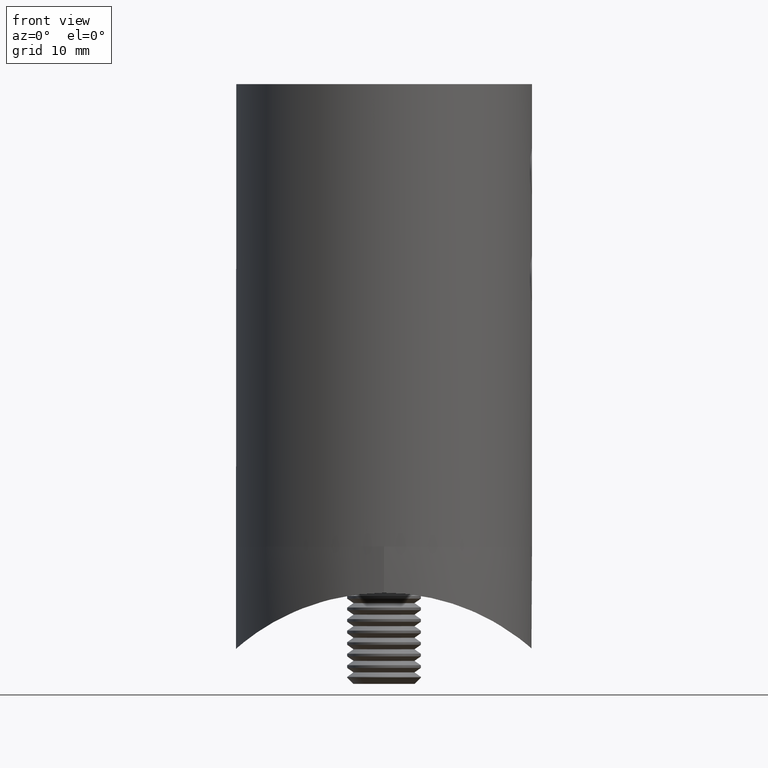
[diagram: clean part render]
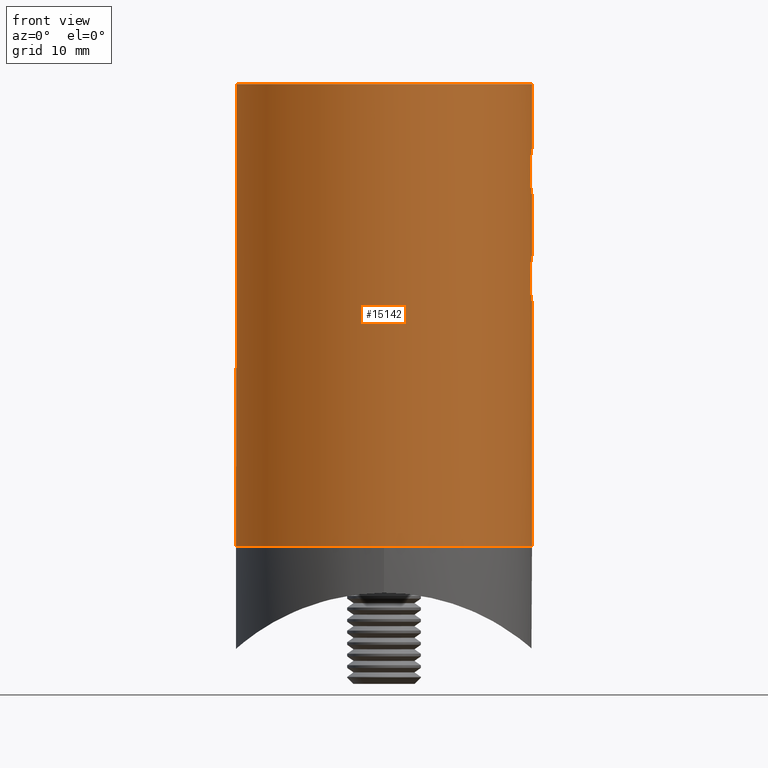
[diagram: same view with one face highlighted and labeled with its STEP entity id]
A machine part, front view. The second image highlights one B-rep face of the part: STEP entity #15142.
In plain terms, the highlighted cylindrical surface (bore or boss wall) has radius 16 mm, axis along (0, 0, 1).
Its self-contained STEP definition (entity closure, byte-faithful):
#245 = CARTESIAN_POINT ( 'NONE',  ( 15.82343172302561385, 2.371299003963624585, -21.80860171604527054 ) ) ;
#318 = CARTESIAN_POINT ( 'NONE',  ( 15.85264640334946229, 2.168402107178427851, -22.25484005574043422 ) ) ;
#457 = CARTESIAN_POINT ( 'NONE',  ( 15.99999999999999645, -1.084202172485504434E-16, -7.000000000000027534 ) ) ;
#520 = CARTESIAN_POINT ( 'NONE',  ( 15.96220866737805366, -1.109447262463671979, -7.253677395150227802 ) ) ;
#592 = CARTESIAN_POINT ( 'NONE',  ( 15.88941756032911279, 1.881455542367965084, -11.15429087891313920 ) ) ;
#678 = CARTESIAN_POINT ( 'NONE',  ( 15.85253555748232479, -2.169241836718339478, -19.74644636522888774 ) ) ;
#708 = CARTESIAN_POINT ( 'NONE',  ( 15.99999010098698804, -0.1642426287511559446, -11.99993664631212376 ) ) ;
#776 = CARTESIAN_POINT ( 'NONE',  ( 15.80345902061458929, 2.500136596893099750, -9.336853430154221201 ) ) ;
#846 = CARTESIAN_POINT ( 'NONE',  ( 15.99999999999999289, 0.1654332363785443738, -7.000000000000026645 ) ) ;
#856 = AXIS2_PLACEMENT_3D ( 'NONE', #16543, #10325, #2612 ) ;
#882 = CARTESIAN_POINT ( 'NONE',  ( 0.3301022249100266648, 15.99739960002328409, -44.48350564471681423 ) ) ;
#942 = CARTESIAN_POINT ( 'NONE',  ( 0.6509587533249504565, 15.98755810445062409, -44.41930164876154663 ) ) ;
#1074 = CARTESIAN_POINT ( 'NONE',  ( 0.1654332363785450122, 16.00000000000000355, -39.50000000000002842 ) ) ;
#1130 = EDGE_LOOP ( 'NONE', ( #8014 ) ) ;
#1257 = B_SPLINE_CURVE_WITH_KNOTS ( 'NONE', 3,
 ( #2671, #1074, #7252, #16411, #16287, #17737, #17802, #7180, #14895, #7125, #16479, #17676, #5696, #19272, #8773, #19448, #11857, #4212, #16354, #19328, #8521, #14961, #5641, #10258, #5762, #19206, #10062, #2413, #14773, #5577, #942, #882, #7059, #3960, #14707, #8580, #17993, #3007, #19778, #19652, #18060, #6037, #7322, #13602, #6112, #8904, #5968, #12051, #10661, #12186, #10597, #16738, #7585, #5904, #7391, #7448, #16678, #1396, #16607, #8832, #19515, #18120 ),
 .UNSPECIFIED., .T., .F.,
 ( 4, 2, 2, 2, 2, 2, 2, 2, 2, 2, 2, 2, 2, 2, 2, 2, 2, 2, 2, 2, 2, 2, 2, 2, 2, 2, 2, 2, 2, 2, 4 ),
 ( 0.000000000000000000, 0.0004891981462341162207, 0.0009783962924682324414, 0.001467594438702348554, 0.001956792584936464883, 0.002445990731170581429, 0.002935188877404697107, 0.003424387023638813653, 0.003913585169872929766, 0.004402783316107046312, 0.004891981462341162858, 0.005381179608575278536, 0.005870377754809394215, 0.006359575901043510761, 0.006848774047277627307, 0.007337972193511742985, 0.007827170339745859531, 0.008805566632214092623, 0.009294764778448203965, 0.009783962924682318776, 0.01027316107091643012, 0.01076235921715054319, 0.01125155736338465627, 0.01174075550961876761, 0.01222995365585288069, 0.01271915180208699377, 0.01320834994832110684, 0.01369754809455521992, 0.01467594438702342872, 0.01516514253325753660, 0.01565434067949163927 ),
 .UNSPECIFIED. ) ;
#1328 = CIRCLE ( 'NONE', #856, 16.00000000000000000 ) ;
#1377 = ORIENTED_EDGE ( 'NONE', *, *, #7118, .F. ) ;
#1386 = CARTESIAN_POINT ( 'NONE',  ( 15.98767710712706958, -0.6479051388432868208, -18.57991559567076578 ) ) ;
#1396 = CARTESIAN_POINT ( 'NONE',  ( -0.8098413242424431502, 15.98020123595263797, -39.62920709765658245 ) ) ;
#1422 = CIRCLE ( 'NONE', #12457, 16.00000000000000000 ) ;
#1519 = CARTESIAN_POINT ( 'NONE',  ( 15.81601659681034278, -2.419644226415069710, -20.35007019547621354 ) ) ;
#1639 = CARTESIAN_POINT ( 'NONE',  ( 15.81585894962995376, 2.420668142417814028, -20.35426504927201563 ) ) ;
#1707 = CARTESIAN_POINT ( 'NONE',  ( 15.88941756032911279, 1.881455542367964862, -22.65429087891314452 ) ) ;
#1772 = CARTESIAN_POINT ( 'NONE',  ( 15.88903459083776326, -1.884754519590195576, -22.65070363260169017 ) ) ;
#1965 = CARTESIAN_POINT ( 'NONE',  ( 16.00000000000000000, 0.000000000000000000, -50.00000000000000000 ) ) ;
#1974 = CARTESIAN_POINT ( 'NONE',  ( 15.84159404494869072, -2.246747056407897958, -8.391566941149580572 ) ) ;
#2039 = CARTESIAN_POINT ( 'NONE',  ( 15.80349541719041895, -2.499906519796543769, -9.335259249978825835 ) ) ;
#2051 = ORIENTED_EDGE ( 'NONE', *, *, #14652, .F. ) ;
#2104 = CARTESIAN_POINT ( 'NONE',  ( 15.95144872720779006, -1.252940556555169005, -7.330482931139792768 ) ) ;
#2244 = CARTESIAN_POINT ( 'NONE',  ( 15.80604236739318402, -2.483965348626151481, -9.172886747353938830 ) ) ;
#2310 = CARTESIAN_POINT ( 'NONE',  ( 15.85233394127914508, 2.170684478349000468, -8.249063867346546175 ) ) ;
#2371 = CARTESIAN_POINT ( 'NONE',  ( 15.92747579174407235, 1.539172029433665934, -7.503283891598835353 ) ) ;
#2413 = CARTESIAN_POINT ( 'NONE',  ( 1.255497401840284466, 15.95124297675815050, -44.16799641339771654 ) ) ;
#2612 = DIRECTION ( 'NONE',  ( 1.000000000000000000, 0.000000000000000000, 0.000000000000000000 ) ) ;
#2671 = CARTESIAN_POINT ( 'NONE',  ( -1.897353801849632760E-16, 16.00000000000000355, -39.50000000000003553 ) ) ;
#2928 = CARTESIAN_POINT ( 'NONE',  ( 15.80349541719041895, -2.499906519796544657, -20.83525924997883294 ) ) ;
#2993 = CARTESIAN_POINT ( 'NONE',  ( 16.00000000000000000, 2.710505431213761085E-17, -18.50000000000003197 ) ) ;
#3007 = CARTESIAN_POINT ( 'NONE',  ( -1.525047224483061736, 15.92774250322208296, -43.98774827025957990 ) ) ;
#3058 = CARTESIAN_POINT ( 'NONE',  ( 15.82322682364501887, -2.372658450600114932, -21.80459498615443792 ) ) ;
#3315 = CARTESIAN_POINT ( 'NONE',  ( 15.84151050614816825, 2.247342240368213062, -19.89264035338175773 ) ) ;
#3387 = CARTESIAN_POINT ( 'NONE',  ( 15.95309248088372378, 1.260768949626731805, -18.81677543970674193 ) ) ;
#3462 = EDGE_LOOP ( 'NONE', ( #7153, #17123, #12077, #4696 ) ) ;
#3521 = CARTESIAN_POINT ( 'NONE',  ( 16.00000000000000000, -0.1654332363785452065, -7.000000000000028422 ) ) ;
#3580 = CARTESIAN_POINT ( 'NONE',  ( 15.87640092462452124, 1.987022739836274976, -11.02588724854756741 ) ) ;
#3655 = CARTESIAN_POINT ( 'NONE',  ( 15.80346596981615015, -2.500092668231061577, -9.661891237243120045 ) ) ;
#3793 = CARTESIAN_POINT ( 'NONE',  ( 16.00001971032907377, 0.3255837222652484542, -12.00012614611530459 ) ) ;
#3850 = CARTESIAN_POINT ( 'NONE',  ( 15.80612643001855488, 2.483427711985340292, -9.830381127494243643 ) ) ;
#3893 = FACE_OUTER_BOUND ( 'NONE', #1130, .T. ) ;
#3960 = CARTESIAN_POINT ( 'NONE',  ( -0.3255837222652461782, 16.00001971032908088, -44.50012614611529926 ) ) ;
#3980 = CARTESIAN_POINT ( 'NONE',  ( 15.80350251168070486, 2.499861672707218929, -9.667306376764694065 ) ) ;
#3996 = EDGE_CURVE ( 'NONE', #17806, #17806, #12046, .T. ) ;
#4212 = CARTESIAN_POINT ( 'NONE',  ( 2.500092668231061577, 15.80346596981614304, -42.16189123724311116 ) ) ;
#4406 = CARTESIAN_POINT ( 'NONE',  ( 15.99999999999999645, -0.1654332363785449567, -18.50000000000003197 ) ) ;
#4606 = CARTESIAN_POINT ( 'NONE',  ( 15.80346596981615015, -2.500092668231060244, -21.16189123724311827 ) ) ;
#4659 = CARTESIAN_POINT ( 'NONE',  ( 16.00000000000000000, -7.703719777548943412E-31, -18.50000000000003197 ) ) ;
#4696 = ORIENTED_EDGE ( 'NONE', *, *, #13542, .F. ) ;
#4805 = CARTESIAN_POINT ( 'NONE',  ( 16.00001971032908088, 0.3255837222652474550, -23.50012614611530637 ) ) ;
#4873 = CARTESIAN_POINT ( 'NONE',  ( 15.96222279634701025, -1.109231536206028101, -23.24642170904225580 ) ) ;
#4940 = CARTESIAN_POINT ( 'NONE',  ( 15.99739960002328054, -0.3301022249100284411, -23.48350564471681778 ) ) ;
#5037 = CARTESIAN_POINT ( 'NONE',  ( 8.150000000000000355, 13.76871453694934111, -33.00000000000000000 ) ) ;
#5138 = CARTESIAN_POINT ( 'NONE',  ( 15.80606710648460300, -2.483805029018752109, -9.827817169408570308 ) ) ;
#5266 = CARTESIAN_POINT ( 'NONE',  ( 15.95124297675813985, -1.255497401840281357, -11.66799641339772542 ) ) ;
#5328 = CARTESIAN_POINT ( 'NONE',  ( 8.149999999999995026, 13.76871453694933933, -50.00000000000000000 ) ) ;
#5335 = CARTESIAN_POINT ( 'NONE',  ( 15.81601659681034278, -2.419644226415069266, -8.850070195476209989 ) ) ;
#5403 = CARTESIAN_POINT ( 'NONE',  ( 15.84151050614817891, 2.247342240368211730, -8.392640353381754181 ) ) ;
#5577 = CARTESIAN_POINT ( 'NONE',  ( 0.8067820723244113479, 15.98036463566804954, -44.37189961498080493 ) ) ;
#5641 = CARTESIAN_POINT ( 'NONE',  ( 2.169091757621980143, 15.85255037896790853, -43.25360227542727642 ) ) ;
#5696 = CARTESIAN_POINT ( 'NONE',  ( 2.246747056407895293, 15.84159404494869783, -40.89156694114956991 ) ) ;
#5762 = CARTESIAN_POINT ( 'NONE',  ( 1.884754519590196020, 15.88903459083775616, -43.65070363260165465 ) ) ;
#5806 = DIRECTION ( 'NONE',  ( 0.000000000000000000, 0.000000000000000000, 1.000000000000000000 ) ) ;
#5891 = CARTESIAN_POINT ( 'NONE',  ( 15.87647291073326272, -1.986479716021239961, -19.47326976867123705 ) ) ;
#5904 = CARTESIAN_POINT ( 'NONE',  ( -1.989343226491896655, 15.87611022944810557, -40.47709953058839005 ) ) ;
#5968 = CARTESIAN_POINT ( 'NONE',  ( -2.499861672707217597, 15.80350251168070486, -42.16730637676466387 ) ) ;
#6037 = CARTESIAN_POINT ( 'NONE',  ( -2.168402107178430516, 15.85264640334946229, -43.25484005574040935 ) ) ;
#6112 = CARTESIAN_POINT ( 'NONE',  ( -2.419509985083067249, 15.81603671450187676, -42.65002793951062898 ) ) ;
#6161 = CARTESIAN_POINT ( 'NONE',  ( 15.92764525334669479, -1.525956392937322326, -22.98694218873797013 ) ) ;
#6354 = CARTESIAN_POINT ( 'NONE',  ( 15.87611022944811268, 1.989343226491899541, -19.47709953058840782 ) ) ;
#6421 = CARTESIAN_POINT ( 'NONE',  ( 15.91503527193069090, 1.650793038997937945, -22.88452530159675646 ) ) ;
#6685 = CARTESIAN_POINT ( 'NONE',  ( 15.98767710712706958, -0.6479051388432872649, -7.079915595670764894 ) ) ;
#6753 = CARTESIAN_POINT ( 'NONE',  ( 15.98036463566804954, -0.8067820723244106818, -11.87189961498082624 ) ) ;
#6945 = CARTESIAN_POINT ( 'NONE',  ( 15.98020123595263797, 0.8098413242424457037, -7.129207097656609982 ) ) ;
#7059 = CARTESIAN_POINT ( 'NONE',  ( 0.1642426287511583038, 15.99999010098699159, -44.49993664631212908 ) ) ;
#7082 = DIRECTION ( 'NONE',  ( 0.000000000000000000, 0.000000000000000000, 1.000000000000000000 ) ) ;
#7118 = EDGE_CURVE ( 'NONE', #8941, #8941, #7444, .T. ) ;
#7125 = CARTESIAN_POINT ( 'NONE',  ( 1.883088210293348164, 15.88922248633940093, -40.34758278094891892 ) ) ;
#7153 = ORIENTED_EDGE ( 'NONE', *, *, #17046, .F. ) ;
#7180 = CARTESIAN_POINT ( 'NONE',  ( 1.524503371790983275, 15.92778911225276417, -40.01189692929805375 ) ) ;
#7252 = CARTESIAN_POINT ( 'NONE',  ( 0.3280518095241423127, 15.99743674345870126, -39.51625854741580213 ) ) ;
#7322 = CARTESIAN_POINT ( 'NONE',  ( -2.245344190651986427, 15.84179535043164400, -43.11145182841886481 ) ) ;
#7380 = CARTESIAN_POINT ( 'NONE',  ( 15.96220866737805011, -1.109447262463671979, -18.75367739515022336 ) ) ;
#7391 = CARTESIAN_POINT ( 'NONE',  ( -1.884110435080143198, 15.88910040803500756, -40.34875522503264023 ) ) ;
#7444 = B_SPLINE_CURVE_WITH_KNOTS ( 'NONE', 3,
 ( #2993, #4406, #8963, #1386, #15085, #7380, #18314, #18048, #13733, #15283, #5891, #678, #19568, #12113, #1519, #19638, #2928, #4606, #12242, #13657, #3058, #15220, #13802, #7574, #1772, #15602, #6161, #9233, #4873, #16861, #12435, #4940, #16920, #4805, #10897, #9486, #11027, #9425, #6421, #1707, #7760, #318, #15541, #245, #15481, #7692, #10965, #12374, #12507, #1639, #14066, #3315, #12574, #6354, #13931, #9351, #3387, #18511, #10769, #17049, #14130, #18438 ),
 .UNSPECIFIED., .T., .F.,
 ( 4, 2, 2, 2, 2, 2, 2, 2, 2, 2, 2, 2, 2, 2, 2, 2, 2, 2, 2, 2, 2, 2, 2, 2, 2, 2, 2, 2, 2, 2, 4 ),
 ( 0.000000000000000000, 0.0004891981462341139439, 0.0009783962924682276709, 0.001467594438702341832, 0.001956792584936455776, 0.002445990731170569719, 0.002935188877404683663, 0.003424387023638797607, 0.003913585169872911551, 0.004402783316107025495, 0.004891981462341139439, 0.005381179608575253383, 0.005870377754809367327, 0.006359575901043481271, 0.006848774047277595214, 0.007337972193511709158, 0.007827170339745823102, 0.008805566632214050990, 0.009294764778448164066, 0.009783962924682278878, 0.01027316107091639369, 0.01076235921715050677, 0.01125155736338461984, 0.01174075550961873465, 0.01222995365585284946, 0.01271915180208696254, 0.01320834994832107562, 0.01369754809455519043, 0.01467594438702341832, 0.01516514253325753139, 0.01565434067949164620 ),
 .UNSPECIFIED. ) ;
#7448 = CARTESIAN_POINT ( 'NONE',  ( -1.539172029433665267, 15.92747579174406347, -40.00328389159881937 ) ) ;
#7574 = CARTESIAN_POINT ( 'NONE',  ( 15.87624052084764337, -1.988290596189300485, -22.52419756693328523 ) ) ;
#7585 = CARTESIAN_POINT ( 'NONE',  ( -2.170684478349001800, 15.85233394127915219, -40.74906386734653552 ) ) ;
#7692 = CARTESIAN_POINT ( 'NONE',  ( 15.80612643001855133, 2.483427711985339403, -21.33038112749423831 ) ) ;
#7760 = CARTESIAN_POINT ( 'NONE',  ( 15.87640092462451058, 1.987022739836274532, -22.52588724854755853 ) ) ;
#7970 = EDGE_LOOP ( 'NONE', ( #8577 ) ) ;
#8014 = ORIENTED_EDGE ( 'NONE', *, *, #19716, .T. ) ;
#8023 = EDGE_CURVE ( 'NONE', #16434, #10866, #1328, .T. ) ;
#8154 = CARTESIAN_POINT ( 'NONE',  ( 15.98036376761718280, -0.8068163506865959622, -7.128105008751027150 ) ) ;
#8211 = CYLINDRICAL_SURFACE ( 'NONE', #12061, 16.00000000000000000 ) ;
#8353 = CARTESIAN_POINT ( 'NONE',  ( 15.91492567410532644, -1.651926334815733144, -11.38368295266011465 ) ) ;
#8521 = CARTESIAN_POINT ( 'NONE',  ( 2.372658450600116709, 15.82322682364501532, -42.80459498615441305 ) ) ;
#8577 = ORIENTED_EDGE ( 'NONE', *, *, #3996, .F. ) ;
#8580 = CARTESIAN_POINT ( 'NONE',  ( -1.106495572119109871, 15.96240569125736997, -44.24770843532476050 ) ) ;
#8773 = CARTESIAN_POINT ( 'NONE',  ( 2.419644226415068378, 15.81601659681034278, -41.35007019547618512 ) ) ;
#8832 = CARTESIAN_POINT ( 'NONE',  ( -0.3288858443642667662, 15.99743546037499975, -39.51626077848827379 ) ) ;
#8879 = CIRCLE ( 'NONE', #19467, 16.00000000000000000 ) ;
#8904 = CARTESIAN_POINT ( 'NONE',  ( -2.483427711985339847, 15.80612643001855488, -42.33038112749422766 ) ) ;
#8907 = CARTESIAN_POINT ( 'NONE',  ( -8.150000000000000355, 13.76871453694933578, 0.000000000000000000 ) ) ;
#8941 = VERTEX_POINT ( 'NONE', #4659 ) ;
#8963 = CARTESIAN_POINT ( 'NONE',  ( 15.99743674345869060, -0.3280518095241419241, -18.51625854741579857 ) ) ;
#9185 = VECTOR ( 'NONE', #17937, 1000.000000000000000 ) ;
#9233 = CARTESIAN_POINT ( 'NONE',  ( 15.95124297675815050, -1.255497401840282023, -23.16799641339772720 ) ) ;
#9351 = CARTESIAN_POINT ( 'NONE',  ( 15.92747579174406347, 1.539172029433665712, -19.00328389159884068 ) ) ;
#9425 = CARTESIAN_POINT ( 'NONE',  ( 15.92774250322207763, 1.525047224483062180, -22.98774827025959411 ) ) ;
#9486 = CARTESIAN_POINT ( 'NONE',  ( 15.96240569125736641, 1.106495572119109649, -23.24770843532474984 ) ) ;
#9539 = EDGE_LOOP ( 'NONE', ( #1377 ) ) ;
#9621 = CARTESIAN_POINT ( 'NONE',  ( 15.85255037896792274, -2.169091757621979699, -10.75360227542731373 ) ) ;
#9699 = CARTESIAN_POINT ( 'NONE',  ( 15.92774250322207941, 1.525047224483063957, -11.48774827025959056 ) ) ;
#9764 = CARTESIAN_POINT ( 'NONE',  ( 15.85264640334946229, 2.168402107178429628, -10.75484005574042889 ) ) ;
#9959 = DIRECTION ( 'NONE',  ( -0.000000000000000000, -0.000000000000000000, 1.000000000000000000 ) ) ;
#9968 = CARTESIAN_POINT ( 'NONE',  ( 15.95309248088371312, 1.260768949626728919, -7.316775439706737494 ) ) ;
#10024 = CARTESIAN_POINT ( 'NONE',  ( 15.87611022944810912, 1.989343226491896210, -7.977099530588411369 ) ) ;
#10062 = CARTESIAN_POINT ( 'NONE',  ( 1.525956392937325656, 15.92764525334669479, -43.98694218873795592 ) ) ;
#10230 = DIRECTION ( 'NONE',  ( 1.000000000000000000, 0.000000000000000000, 0.000000000000000000 ) ) ;
#10258 = CARTESIAN_POINT ( 'NONE',  ( 1.988290596189302928, 15.87624052084763626, -43.52419756693325326 ) ) ;
#10325 = DIRECTION ( 'NONE',  ( 0.000000000000000000, 0.000000000000000000, 1.000000000000000000 ) ) ;
#10597 = CARTESIAN_POINT ( 'NONE',  ( -2.372543552883939810, 15.82324364191536858, -41.19512136196161123 ) ) ;
#10661 = CARTESIAN_POINT ( 'NONE',  ( -2.484052892959634384, 15.80602764122869885, -41.67428677139690052 ) ) ;
#10769 = CARTESIAN_POINT ( 'NONE',  ( 15.98753103381766749, 0.6518885259027890067, -18.58087458595154473 ) ) ;
#10866 = VERTEX_POINT ( 'NONE', #17070 ) ;
#10897 = CARTESIAN_POINT ( 'NONE',  ( 15.98942922284852308, 0.6550303360437331746, -23.43455086294360967 ) ) ;
#10965 = CARTESIAN_POINT ( 'NONE',  ( 15.80350251168070486, 2.499861672707218041, -21.16730637676469584 ) ) ;
#11027 = CARTESIAN_POINT ( 'NONE',  ( 15.95151097178184507, 1.252217234737675433, -23.16999175571001146 ) ) ;
#11160 = CARTESIAN_POINT ( 'NONE',  ( 15.96240569125737352, 1.106495572119110093, -11.74770843532475695 ) ) ;
#11227 = CARTESIAN_POINT ( 'NONE',  ( 15.99743674345869771, -0.3280518095241419241, -7.016258547415803903 ) ) ;
#11366 = CARTESIAN_POINT ( 'NONE',  ( -8.150000000000000355, 13.76871453694933578, -50.00000000000000000 ) ) ;
#11380 = VERTEX_POINT ( 'NONE', #1965 ) ;
#11432 = CARTESIAN_POINT ( 'NONE',  ( 15.87647291073325562, -1.986479716021239961, -7.973269768671229052 ) ) ;
#11496 = CARTESIAN_POINT ( 'NONE',  ( 15.99743546037500685, 0.3288858443642636020, -7.016260778488280003 ) ) ;
#11857 = CARTESIAN_POINT ( 'NONE',  ( 2.499906519796543325, 15.80349541719041895, -41.83525924997879031 ) ) ;
#11891 = DIRECTION ( 'NONE',  ( 0.000000000000000000, 0.000000000000000000, 1.000000000000000000 ) ) ;
#12046 = B_SPLINE_CURVE_WITH_KNOTS ( 'NONE', 3,
 ( #457, #3521, #11227, #6685, #8154, #520, #2104, #12917, #12853, #14270, #11432, #15800, #1974, #14465, #5335, #2244, #2039, #3655, #5138, #17444, #18772, #14393, #9621, #19041, #15935, #8353, #17311, #5266, #15868, #6753, #12975, #18840, #708, #3793, #14535, #11160, #12701, #9699, #12778, #592, #3580, #9764, #16191, #13173, #19158, #3850, #3980, #776, #13049, #14732, #14603, #5403, #2310, #10024, #19291, #2371, #9968, #6945, #13111, #11496, #846, #17761 ),
 .UNSPECIFIED., .T., .F.,
 ( 4, 2, 2, 2, 2, 2, 2, 2, 2, 2, 2, 2, 2, 2, 2, 2, 2, 2, 2, 2, 2, 2, 2, 2, 2, 2, 2, 2, 2, 2, 4 ),
 ( 0.000000000000000000, 0.0004891981462341147028, 0.0009783962924682294057, 0.001467594438702344217, 0.001956792584936458811, 0.002445990731170573623, 0.002935188877404688434, 0.003424387023638802811, 0.003913585169872917623, 0.004402783316107032434, 0.004891981462341147245, 0.005381179608575261189, 0.005870377754809376868, 0.006359575901043491679, 0.006848774047277605623, 0.007337972193511720434, 0.007827170339745835245, 0.008805566632214064868, 0.009294764778448177944, 0.009783962924682289286, 0.01027316107091640410, 0.01076235921715051544, 0.01125155736338463025, 0.01174075550961874333, 0.01222995365585285467, 0.01271915180208696948, 0.01320834994832108082, 0.01369754809455519390, 0.01467594438702342179, 0.01516514253325753660, 0.01565434067949164967 ),
 .UNSPECIFIED. ) ;
#12051 = CARTESIAN_POINT ( 'NONE',  ( -2.500136596893099306, 15.80345902061458574, -41.83685343015421410 ) ) ;
#12061 = AXIS2_PLACEMENT_3D ( 'NONE', #13511, #11891, #10230 ) ;
#12077 = ORIENTED_EDGE ( 'NONE', *, *, #8023, .F. ) ;
#12113 = CARTESIAN_POINT ( 'NONE',  ( 15.82339770301563853, -2.371509930957719003, -20.19226438186806760 ) ) ;
#12186 = CARTESIAN_POINT ( 'NONE',  ( -2.420668142417813584, 15.81585894962995731, -41.35426504927199431 ) ) ;
#12242 = CARTESIAN_POINT ( 'NONE',  ( 15.80606710648461366, -2.483805029018753441, -21.32781716940857919 ) ) ;
#12374 = CARTESIAN_POINT ( 'NONE',  ( 15.80345902061458574, 2.500136596893099306, -20.83685343015422120 ) ) ;
#12435 = CARTESIAN_POINT ( 'NONE',  ( 15.98755810445063119, -0.6509587533249517888, -23.41930164876156439 ) ) ;
#12457 = AXIS2_PLACEMENT_3D ( 'NONE', #18033, #5806, #16647 ) ;
#12507 = CARTESIAN_POINT ( 'NONE',  ( 15.80602764122868820, 2.484052892959634384, -20.67428677139689697 ) ) ;
#12574 = CARTESIAN_POINT ( 'NONE',  ( 15.85233394127914508, 2.170684478349002244, -19.74906386734655328 ) ) ;
#12701 = CARTESIAN_POINT ( 'NONE',  ( 15.95151097178185573, 1.252217234737675877, -11.66999175571001146 ) ) ;
#12778 = CARTESIAN_POINT ( 'NONE',  ( 15.91503527193070155, 1.650793038997938167, -11.38452530159675113 ) ) ;
#12785 = LINE ( 'NONE', #5328, #9185 ) ;
#12853 = CARTESIAN_POINT ( 'NONE',  ( 15.91481673507199801, -1.652882547917920775, -7.617320219381272572 ) ) ;
#12917 = CARTESIAN_POINT ( 'NONE',  ( 15.92778911225276062, -1.524503371790980832, -7.511896929298057302 ) ) ;
#12975 = CARTESIAN_POINT ( 'NONE',  ( 15.98755810445063474, -0.6509587533249493463, -11.91930164876157150 ) ) ;
#13049 = CARTESIAN_POINT ( 'NONE',  ( 15.80602764122869175, 2.484052892959633496, -9.174286771396884532 ) ) ;
#13104 = CARTESIAN_POINT ( 'NONE',  ( -8.150000000000000355, 13.76871453694933578, -33.00000000000000000 ) ) ;
#13111 = CARTESIAN_POINT ( 'NONE',  ( 15.98753103381767104, 0.6518885259027891177, -7.080874585951538513 ) ) ;
#13173 = CARTESIAN_POINT ( 'NONE',  ( 15.82343172302561030, 2.371299003963625474, -10.30860171604527231 ) ) ;
#13511 = CARTESIAN_POINT ( 'NONE',  ( 0.000000000000000000, 0.000000000000000000, -50.00000000000000000 ) ) ;
#13542 = EDGE_CURVE ( 'NONE', #15677, #16434, #17416, .T. ) ;
#13602 = CARTESIAN_POINT ( 'NONE',  ( -2.371299003963626806, 15.82343172302561030, -42.80860171604525988 ) ) ;
#13657 = CARTESIAN_POINT ( 'NONE',  ( 15.81597365182931014, -2.419921949467493061, -21.64863647540309799 ) ) ;
#13733 = CARTESIAN_POINT ( 'NONE',  ( 15.91481673507199801, -1.652882547917922329, -19.11732021938126991 ) ) ;
#13802 = CARTESIAN_POINT ( 'NONE',  ( 15.85255037896792629, -2.169091757621978811, -22.25360227542731550 ) ) ;
#13931 = CARTESIAN_POINT ( 'NONE',  ( 15.88910040803501111, 1.884110435080141199, -19.34875522503266509 ) ) ;
#13942 = VERTEX_POINT ( 'NONE', #18624 ) ;
#14066 = CARTESIAN_POINT ( 'NONE',  ( 15.82324364191535437, 2.372543552883942919, -20.19512136196161123 ) ) ;
#14130 = CARTESIAN_POINT ( 'NONE',  ( 16.00000000000000355, 0.1654332363785450122, -18.50000000000003197 ) ) ;
#14190 = EDGE_CURVE ( 'NONE', #10866, #18975, #12785, .T. ) ;
#14270 = CARTESIAN_POINT ( 'NONE',  ( 15.88922248633939738, -1.883088210293350606, -7.847582780948944681 ) ) ;
#14393 = CARTESIAN_POINT ( 'NONE',  ( 15.84152337852460057, -2.247254387776698614, -10.60757795733184849 ) ) ;
#14465 = CARTESIAN_POINT ( 'NONE',  ( 15.82339770301562787, -2.371509930957720336, -8.692264381868065826 ) ) ;
#14535 = CARTESIAN_POINT ( 'NONE',  ( 15.98942922284851420, 0.6550303360437321754, -11.93455086294359191 ) ) ;
#14603 = CARTESIAN_POINT ( 'NONE',  ( 15.82324364191536858, 2.372543552883942919, -8.695121361961605899 ) ) ;
#14652 = EDGE_CURVE ( 'NONE', #13942, #13942, #1257, .T. ) ;
#14704 = FACE_OUTER_BOUND ( 'NONE', #3462, .T. ) ;
#14707 = CARTESIAN_POINT ( 'NONE',  ( -0.6550303360437297329, 15.98942922284853019, -44.43455086294360257 ) ) ;
#14732 = CARTESIAN_POINT ( 'NONE',  ( 15.81585894962995731, 2.420668142417810920, -8.854265049272008525 ) ) ;
#14773 = CARTESIAN_POINT ( 'NONE',  ( 1.109231536206027657, 15.96222279634701735, -44.24642170904224514 ) ) ;
#14895 = CARTESIAN_POINT ( 'NONE',  ( 1.652882547917917888, 15.91481673507200156, -40.11732021938126280 ) ) ;
#14961 = CARTESIAN_POINT ( 'NONE',  ( 2.247254387776699946, 15.84152337852460413, -43.10757795733184139 ) ) ;
#15085 = CARTESIAN_POINT ( 'NONE',  ( 15.98036376761717570, -0.8068163506865962953, -18.62810500875103159 ) ) ;
#15142 = ADVANCED_FACE ( 'NONE', ( #18240, #18725, #16351, #14704, #3893 ), #8211, .T. ) ;
#15220 = CARTESIAN_POINT ( 'NONE',  ( 15.84152337852460413, -2.247254387776697282, -22.10757795733184139 ) ) ;
#15283 = CARTESIAN_POINT ( 'NONE',  ( 15.88922248633940093, -1.883088210293351716, -19.34758278094894379 ) ) ;
#15393 = CARTESIAN_POINT ( 'NONE',  ( 16.00000000000000000, 0.000000000000000000, -7.000000000000027534 ) ) ;
#15481 = CARTESIAN_POINT ( 'NONE',  ( 15.81603671450185900, 2.419509985083066361, -21.65002793951064319 ) ) ;
#15523 = VECTOR ( 'NONE', #7082, 1000.000000000000000 ) ;
#15541 = CARTESIAN_POINT ( 'NONE',  ( 15.84179535043163334, 2.245344190651985095, -22.11145182841885770 ) ) ;
#15602 = CARTESIAN_POINT ( 'NONE',  ( 15.91492567410532644, -1.651926334815734254, -22.88368295266010932 ) ) ;
#15677 = VERTEX_POINT ( 'NONE', #13104 ) ;
#15800 = CARTESIAN_POINT ( 'NONE',  ( 15.85253555748232834, -2.169241836718340366, -8.246446365228889519 ) ) ;
#15868 = CARTESIAN_POINT ( 'NONE',  ( 15.96222279634702090, -1.109231536206025659, -11.74642170904225225 ) ) ;
#15935 = CARTESIAN_POINT ( 'NONE',  ( 15.88903459083776681, -1.884754519590194688, -11.15070363260168840 ) ) ;
#16047 = CARTESIAN_POINT ( 'NONE',  ( 0.000000000000000000, 0.000000000000000000, -33.00000000000000000 ) ) ;
#16191 = CARTESIAN_POINT ( 'NONE',  ( 15.84179535043163689, 2.245344190651985539, -10.61145182841886125 ) ) ;
#16287 = CARTESIAN_POINT ( 'NONE',  ( 0.8068163506865948520, 15.98036376761717925, -39.62810500875100672 ) ) ;
#16351 = FACE_BOUND ( 'NONE', #19450, .T. ) ;
#16354 = CARTESIAN_POINT ( 'NONE',  ( 2.483805029018752553, 15.80606710648460655, -42.32781716940855432 ) ) ;
#16411 = CARTESIAN_POINT ( 'NONE',  ( 0.6479051388432869318, 15.98767710712706958, -39.57991559567076223 ) ) ;
#16434 = VERTEX_POINT ( 'NONE', #8907 ) ;
#16479 = CARTESIAN_POINT ( 'NONE',  ( 1.986479716021238184, 15.87647291073326627, -40.47326976867120862 ) ) ;
#16543 = CARTESIAN_POINT ( 'NONE',  ( 0.000000000000000000, 0.000000000000000000, 0.000000000000000000 ) ) ;
#16607 = CARTESIAN_POINT ( 'NONE',  ( -0.6518885259027915602, 15.98753103381767104, -39.58087458595152697 ) ) ;
#16647 = DIRECTION ( 'NONE',  ( 1.000000000000000000, 0.000000000000000000, 0.000000000000000000 ) ) ;
#16678 = CARTESIAN_POINT ( 'NONE',  ( -1.260768949626728253, 15.95309248088373089, -39.81677543970672417 ) ) ;
#16738 = CARTESIAN_POINT ( 'NONE',  ( -2.247342240368209065, 15.84151050614817891, -40.89264035338172931 ) ) ;
#16861 = CARTESIAN_POINT ( 'NONE',  ( 15.98036463566805310, -0.8067820723244129022, -23.37189961498083690 ) ) ;
#16920 = CARTESIAN_POINT ( 'NONE',  ( 15.99999010098699159, -0.1642426287511566108, -23.49993664631212198 ) ) ;
#17046 = EDGE_CURVE ( 'NONE', #18975, #15677, #8879, .T. ) ;
#17049 = CARTESIAN_POINT ( 'NONE',  ( 15.99743546037500330, 0.3288858443642658225, -18.51626077848827734 ) ) ;
#17070 = CARTESIAN_POINT ( 'NONE',  ( 8.150000000000011013, 13.76871453694933045, 0.000000000000000000 ) ) ;
#17123 = ORIENTED_EDGE ( 'NONE', *, *, #14190, .F. ) ;
#17311 = CARTESIAN_POINT ( 'NONE',  ( 15.92764525334669479, -1.525956392937322104, -11.48694218873796302 ) ) ;
#17416 = LINE ( 'NONE', #11366, #15523 ) ;
#17444 = CARTESIAN_POINT ( 'NONE',  ( 15.81597365182931014, -2.419921949467491284, -10.14863647540310154 ) ) ;
#17565 = DIRECTION ( 'NONE',  ( -1.000000000000000000, 3.552713678800500929E-15, 0.000000000000000000 ) ) ;
#17676 = CARTESIAN_POINT ( 'NONE',  ( 2.169241836718340366, 15.85253555748232479, -40.74644636522886287 ) ) ;
#17737 = CARTESIAN_POINT ( 'NONE',  ( 1.109447262463670647, 15.96220866737805011, -39.75367739515019139 ) ) ;
#17761 = CARTESIAN_POINT ( 'NONE',  ( 15.99999999999999645, -1.084202172485504434E-16, -7.000000000000027534 ) ) ;
#17802 = CARTESIAN_POINT ( 'NONE',  ( 1.252940556555171447, 15.95144872720778650, -39.83048293113979099 ) ) ;
#17806 = VERTEX_POINT ( 'NONE', #15393 ) ;
#17937 = DIRECTION ( 'NONE',  ( -0.000000000000000000, -0.000000000000000000, -1.000000000000000000 ) ) ;
#17993 = CARTESIAN_POINT ( 'NONE',  ( -1.252217234737675655, 15.95151097178185573, -44.16999175571002212 ) ) ;
#18033 = CARTESIAN_POINT ( 'NONE',  ( 0.000000000000000000, 0.000000000000000000, -50.00000000000000000 ) ) ;
#18048 = CARTESIAN_POINT ( 'NONE',  ( 15.92778911225276772, -1.524503371790981276, -19.01189692929806085 ) ) ;
#18060 = CARTESIAN_POINT ( 'NONE',  ( -1.987022739836278751, 15.87640092462451058, -43.52588724854752655 ) ) ;
#18120 = CARTESIAN_POINT ( 'NONE',  ( -1.897353801849632760E-16, 16.00000000000000355, -39.50000000000003553 ) ) ;
#18240 = FACE_BOUND ( 'NONE', #7970, .T. ) ;
#18314 = CARTESIAN_POINT ( 'NONE',  ( 15.95144872720779006, -1.252940556555169449, -18.83048293113979810 ) ) ;
#18438 = CARTESIAN_POINT ( 'NONE',  ( 16.00000000000000000, 2.710505431213761085E-17, -18.50000000000003197 ) ) ;
#18511 = CARTESIAN_POINT ( 'NONE',  ( 15.98020123595264153, 0.8098413242424462588, -18.62920709765661442 ) ) ;
#18624 = CARTESIAN_POINT ( 'NONE',  ( 0.000000000000000000, 16.00000000000000000, -39.50000000000001421 ) ) ;
#18725 = FACE_BOUND ( 'NONE', #9539, .T. ) ;
#18772 = CARTESIAN_POINT ( 'NONE',  ( 15.82322682364502242, -2.372658450600116709, -10.30459498615443259 ) ) ;
#18840 = CARTESIAN_POINT ( 'NONE',  ( 15.99739960002326988, -0.3301022249100263317, -11.98350564471681601 ) ) ;
#18975 = VERTEX_POINT ( 'NONE', #5037 ) ;
#19041 = CARTESIAN_POINT ( 'NONE',  ( 15.87624052084763626, -1.988290596189301596, -11.02419756693327635 ) ) ;
#19158 = CARTESIAN_POINT ( 'NONE',  ( 15.81603671450187321, 2.419509985083066805, -10.15002793951064852 ) ) ;
#19206 = CARTESIAN_POINT ( 'NONE',  ( 1.651926334815734920, 15.91492567410532999, -43.88368295266008801 ) ) ;
#19272 = CARTESIAN_POINT ( 'NONE',  ( 2.371509930957718559, 15.82339770301563497, -41.19226438186804984 ) ) ;
#19291 = CARTESIAN_POINT ( 'NONE',  ( 15.88910040803500756, 1.884110435080142754, -7.848755225032656213 ) ) ;
#19328 = CARTESIAN_POINT ( 'NONE',  ( 2.419921949467492617, 15.81597365182931370, -42.64863647540310865 ) ) ;
#19448 = CARTESIAN_POINT ( 'NONE',  ( 2.483965348626150149, 15.80604236739319113, -41.67288674735393528 ) ) ;
#19450 = EDGE_LOOP ( 'NONE', ( #2051 ) ) ;
#19467 = AXIS2_PLACEMENT_3D ( 'NONE', #16047, #9959, #17565 ) ;
#19515 = CARTESIAN_POINT ( 'NONE',  ( -0.1654332363785406823, 16.00000000000000355, -39.50000000000003553 ) ) ;
#19568 = CARTESIAN_POINT ( 'NONE',  ( 15.84159404494869783, -2.246747056407898402, -19.89156694114959123 ) ) ;
#19638 = CARTESIAN_POINT ( 'NONE',  ( 15.80604236739319113, -2.483965348626151037, -20.67288674735394238 ) ) ;
#19652 = CARTESIAN_POINT ( 'NONE',  ( -1.881455542367962641, 15.88941756032911634, -43.65429087891313742 ) ) ;
#19716 = EDGE_CURVE ( 'NONE', #11380, #11380, #1422, .T. ) ;
#19778 = CARTESIAN_POINT ( 'NONE',  ( -1.650793038997934614, 15.91503527193069445, -43.88452530159674581 ) ) ;